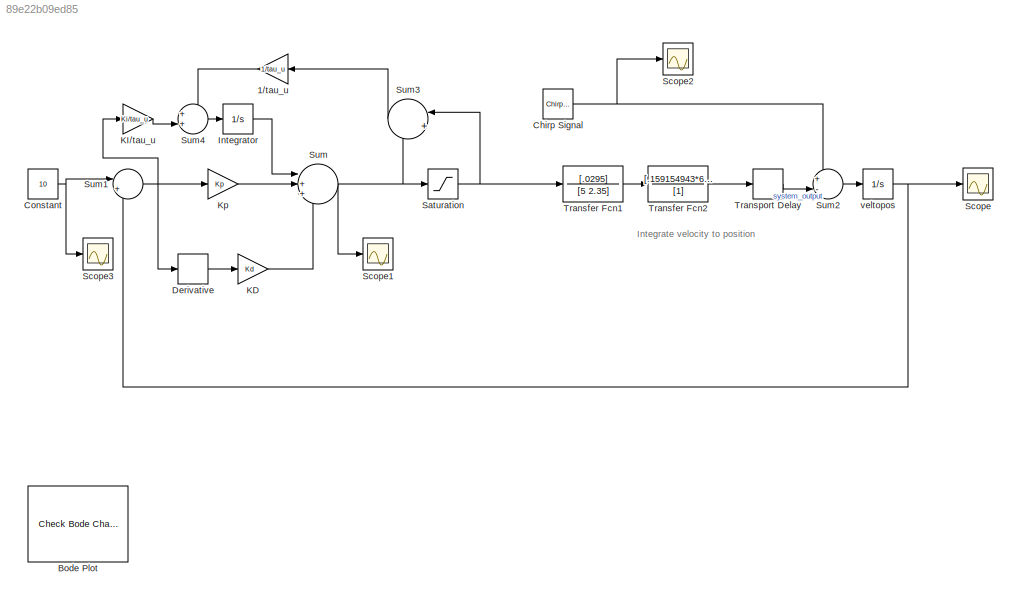
MODEL slx_89e22b09ed85
KIND model
CONFIG AbsTol = auto
CONFIG FixedStep = auto
CONFIG MaxStep = auto
CONFIG MinStep = auto
CONFIG RelTol = 1e-3
CONFIG SampleTimeConstraint = Unconstrained
CONFIG Solver = ode45
CONFIG SolverMode = Auto
CONFIG SolverName = ode45
CONFIG StartTime = 0.0
CONFIG StopTime = 10.0
BLOCK [Gain] 1//tau_u 
  Gain = 1/tau_u
  OutDataTypeStr = Inherit: Inherit via internal rule
  ParamDataTypeStr = Inherit: Inherit via internal rule
  SaturateOnIntegerOverflow = off
BLOCK [Reference] Bode Plot  REF=slctrlblks/Model Verification/Check Bode 
Characteristics
  EnableLowerBound = off
  EnableUpperBound = off
  FrequencyUnits = rad/s
  InstantiateOnLoad = on
  LaunchViewOnOpen = on
  LinearizationIOs = {'/Sum', 1, 'in', 'on', '';'/Sum2', 1, 'out', 'on', ''}
  LinearizeAt = SnapshotTimes
  LowerBoundFrequencies = []
  LowerBoundMagnitudes = []
  MagnitudeUnits = dB
  OpenViewOnLoad = off
  PhaseUnits = deg
  Ports = []
  PreWarpFreq = 10
  RateConversionMethod = zoh
  SampleTime = auto
  SaveName = sys
  SaveOperatingPoints = off
  SaveToWorkspace = off
  SnapshotTimes = [0]
  SourceBlock = slctrlblks/Model Verification/Check Bode \nCharacteristics
  SourceType = Checks_Bode
  TimeUnits = seconds
  TriggerType = rising
  UpperBoundFrequencies = []
  UpperBoundMagnitudes = []
  UseBusSignalLabels = off
  UseExactDelayModel = off
  UseFullBlockNameLabels = off
  ViewDlgPos = [580 417 790 433]
  ZeroCross = on
  enabled = on
  export = off
  stopWhenAssertionFail = off
BLOCK [Reference] Chirp Signal  REF=simulink/Sources/Chirp Signal
  Ports = [0, 1]
  SourceBlock = simulink/Sources/Chirp Signal
  SourceType = chirp
  T = 100
  VectorParams1D = on
  f1 = 0.1
  f2 = .8
BLOCK [Constant] Constant
  Value = 10
BLOCK [Derivative] Derivative
BLOCK [Integrator] Integrator
  Ports = [1, 1]
BLOCK [Gain] KD
  Gain = Kd
  OutDataTypeStr = Inherit: Inherit via internal rule
  ParamDataTypeStr = Inherit: Inherit via internal rule
  SaturateOnIntegerOverflow = off
BLOCK [Gain] KI//tau_u 
  Gain = Ki/tau_u
  OutDataTypeStr = Inherit: Inherit via internal rule
  ParamDataTypeStr = Inherit: Inherit via internal rule
  SaturateOnIntegerOverflow = off
BLOCK [Gain] Kp
  Gain = Kp
  OutDataTypeStr = Inherit: Inherit via internal rule
  ParamDataTypeStr = Inherit: Inherit via internal rule
  SaturateOnIntegerOverflow = off
BLOCK [Saturate] Saturation
  InputPortMap = u0
  LowerLimit = -1
  Ports = [1, 1]
  UpperLimit = 1
BLOCK [Scope] Scope
  Floating = off
  NumInputPorts = 1
  Ports = [1]
  SaveName = output
  SaveToWorkspace = on
  ShowLegends = off
BLOCK [Scope] Scope1
  Floating = off
  NumInputPorts = 1
  Ports = [1]
  SaveName = input
  SaveToWorkspace = on
  ShowLegends = off
BLOCK [Scope] Scope2
  Floating = off
  NumInputPorts = 1
  Ports = [1]
  SaveName = train_input
  SaveToWorkspace = on
  ShowLegends = off
BLOCK [Scope] Scope3
  Floating = off
  NumInputPorts = 1
  Ports = [1]
  SaveName = input1
  SaveToWorkspace = on
  ShowLegends = off
BLOCK [Sum] Sum
  IconShape = round
  InputSameDT = off
  Inputs = |+++
  OutDataTypeStr = Inherit: Inherit via internal rule
  Ports = [3, 1]
  SaturateOnIntegerOverflow = off
BLOCK [Sum] Sum1
  IconShape = round
  InputSameDT = off
  Inputs = |+-
  OutDataTypeStr = Inherit: Inherit via internal rule
  Ports = [2, 1]
  SaturateOnIntegerOverflow = off
BLOCK [Sum] Sum2
  IconShape = round
  InputSameDT = off
  Inputs = +-|
  OutDataTypeStr = Inherit: Inherit via internal rule
  Ports = [2, 1]
  SaturateOnIntegerOverflow = off
BLOCK [Sum] Sum3
  IconShape = round
  InputSameDT = off
  Inputs = |+-
  OutDataTypeStr = Inherit: Inherit via internal rule
  Ports = [2, 1]
  SaturateOnIntegerOverflow = off
BLOCK [Sum] Sum4
  IconShape = round
  InputSameDT = off
  Inputs = ++|
  OutDataTypeStr = Inherit: Inherit via internal rule
  Ports = [2, 1]
  SaturateOnIntegerOverflow = off
BLOCK [TransferFcn] Transfer Fcn1
  Denominator = [5 2.35]
  Numerator = [.0295]
BLOCK [TransferFcn] Transfer Fcn2
  Denominator = [1]
  Numerator = [.159154943*60]
BLOCK [TransportDelay] Transport Delay
  DelayTime = .005
  Ports = [1, 1]
BLOCK [Integrator] veltopos 
  Ports = [1, 1]
ANNOTATION (root): Integrate velocity to position
LINE 1//tau_u :1 -> Sum4:1
NET Chirp Signal:1 -> Scope2:1, Sum2:1
NET Constant:1 -> Scope3:1, Sum1:1
LINE Derivative:1 -> KD:1
LINE Integrator:1 -> Sum:1
LINE KD:1 -> Sum:3
LINE KI//tau_u :1 -> Sum4:2
LINE Kp:1 -> Sum:2
NET Saturation:1 -> Sum3:1, Transfer Fcn1:1
NET Sum1:1 -> Derivative:1, KI//tau_u :1, Kp:1
LINE Sum2:1 -> veltopos :1
LINE Sum3:1 -> 1//tau_u :1
LINE Sum4:1 -> Integrator:1
NET Sum:1 -> Saturation:1, Scope1:1, Sum3:2
LINE Transfer Fcn1:1 -> Transfer Fcn2:1
LINE Transfer Fcn2:1 -> Transport Delay:1
LINE Transport Delay:1 -> Sum2:2
NET veltopos :1 -> Scope:1, Sum1:2
note: NET lines group one-source signal fan-out (src -> all destinations, sorted); 1:1 wires keep LINE
